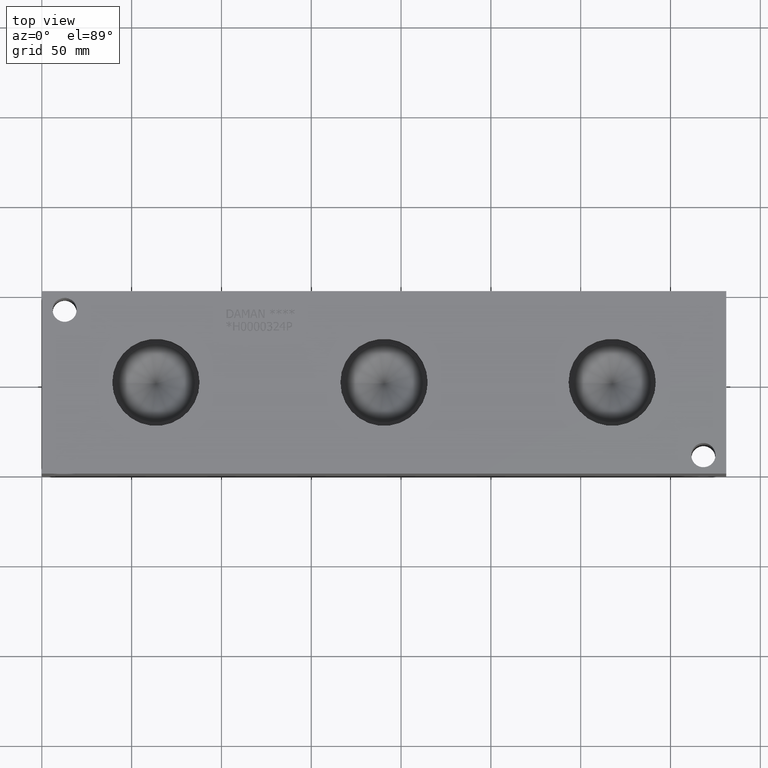
[diagram: clean part render]
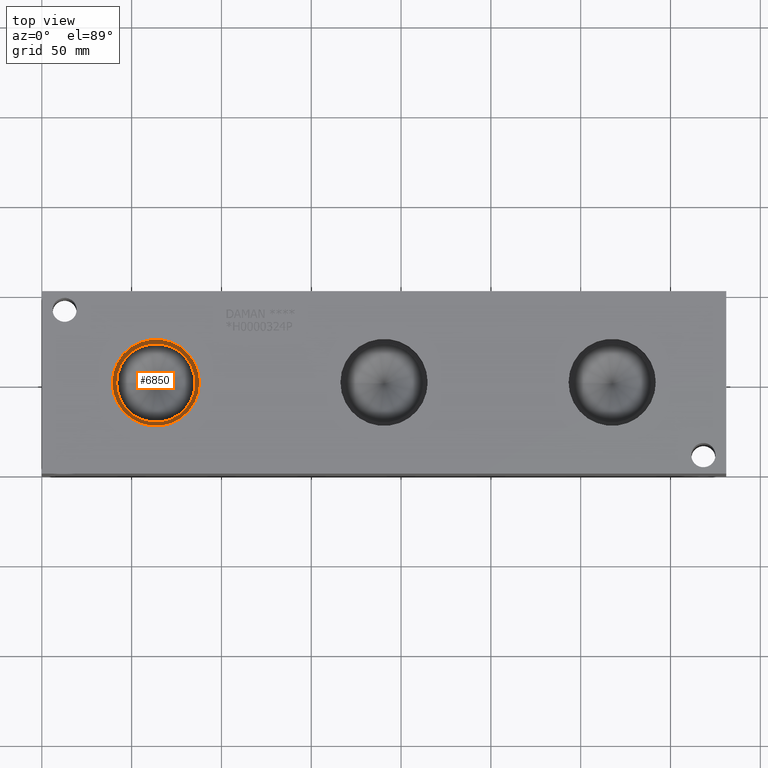
[diagram: same view with one face highlighted and labeled with its STEP entity id]
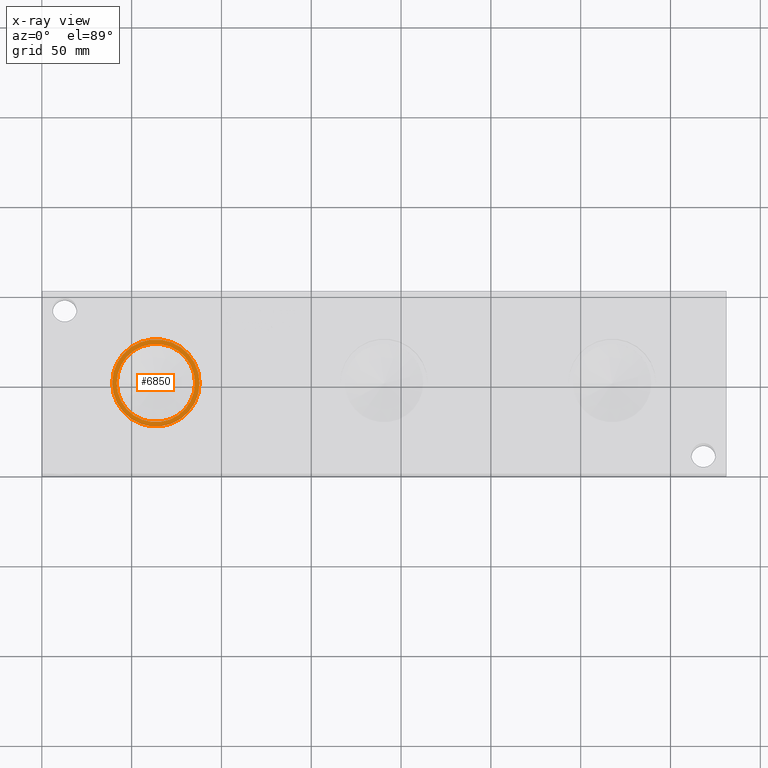
[diagram: x-ray of the same camera — body ghosted, the highlighted face saturated]
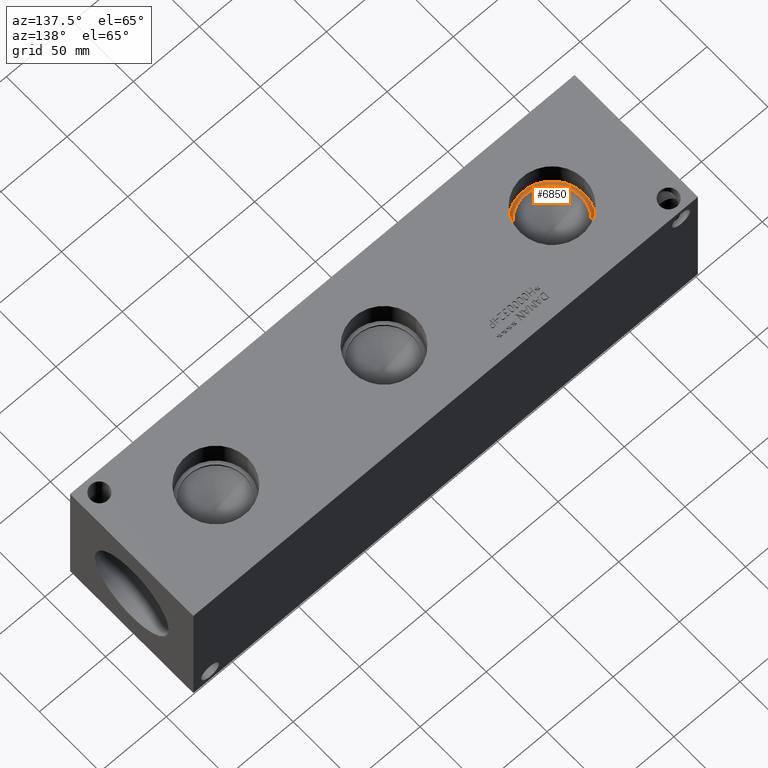
[diagram: same view with one face highlighted and labeled with its STEP entity id]
A machine part, top view. The second image highlights one B-rep face of the part: STEP entity #6850.
The next image is the same camera in x-ray: the body ghosted, the highlighted face saturated — about 0% of this face is hidden behind the body in this view.
A second angle (auxiliary view) of the same face is appended — the face is thin or edge-on in the first view.
In plain terms, the highlighted planar face has unit normal (0, 0, 1).
Its self-contained STEP definition (entity closure, byte-faithful):
#70=CIRCLE('',#7149,24.2824);
#71=CIRCLE('',#7150,24.2824);
#72=CIRCLE('',#7151,21.8186);
#126=FACE_BOUND('',#1070,.T.);
#356=PLANE('',#7148);
#690=FACE_OUTER_BOUND('',#1069,.T.);
#1069=EDGE_LOOP('',(#6026,#6027));
#1070=EDGE_LOOP('',(#6028));
#3283=VERTEX_POINT('',#11548);
#3284=VERTEX_POINT('',#11549);
#3285=VERTEX_POINT('',#11552);
#4210=EDGE_CURVE('',#3283,#3284,#70,.T.);
#4211=EDGE_CURVE('',#3284,#3283,#71,.T.);
#4212=EDGE_CURVE('',#3285,#3285,#72,.T.);
#6026=ORIENTED_EDGE('',*,*,#4210,.T.);
#6027=ORIENTED_EDGE('',*,*,#4211,.T.);
#6028=ORIENTED_EDGE('',*,*,#4212,.F.);
#6850=ADVANCED_FACE('',(#690,#126),#356,.T.);
#7148=AXIS2_PLACEMENT_3D('',#11547,#8396,#8397);
#7149=AXIS2_PLACEMENT_3D('',#11550,#8398,#8399);
#7150=AXIS2_PLACEMENT_3D('',#11551,#8400,#8401);
#7151=AXIS2_PLACEMENT_3D('',#11553,#8402,#8403);
#8396=DIRECTION('center_axis',(0.,0.,1.));
#8397=DIRECTION('ref_axis',(1.,0.,0.));
#8398=DIRECTION('center_axis',(0.,0.,1.));
#8399=DIRECTION('ref_axis',(1.,0.,0.));
#8400=DIRECTION('center_axis',(0.,0.,1.));
#8401=DIRECTION('ref_axis',(1.,0.,0.));
#8402=DIRECTION('center_axis',(0.,0.,1.));
#8403=DIRECTION('ref_axis',(1.,0.,0.));
#11547=CARTESIAN_POINT('Origin',(63.5,50.8,82.0928));
#11548=CARTESIAN_POINT('',(87.7824,50.8,82.0928));
#11549=CARTESIAN_POINT('',(39.2176,50.8,82.0928));
#11550=CARTESIAN_POINT('Origin',(63.5,50.8,82.0928));
#11551=CARTESIAN_POINT('Origin',(63.5,50.8,82.0928));
#11552=CARTESIAN_POINT('',(41.6814,50.8,82.0928));
#11553=CARTESIAN_POINT('Origin',(63.5,50.8,82.0928));